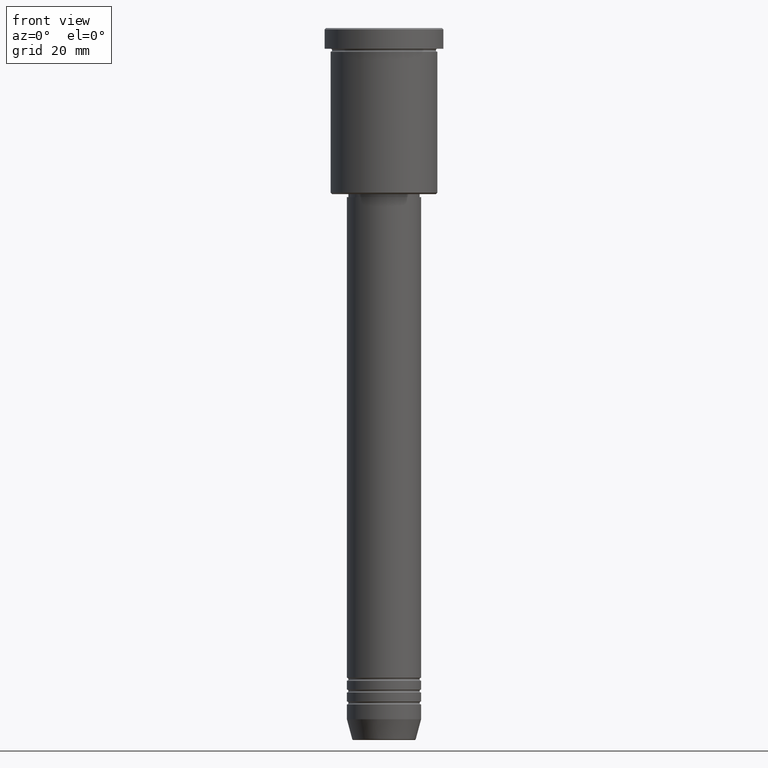
[diagram: clean part render]
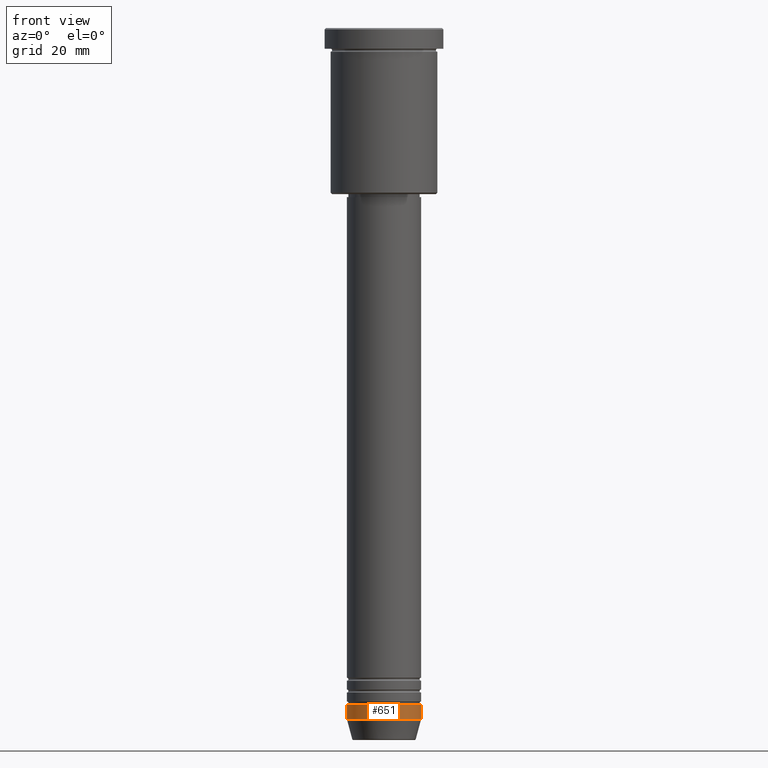
[diagram: same view with one face highlighted and labeled with its STEP entity id]
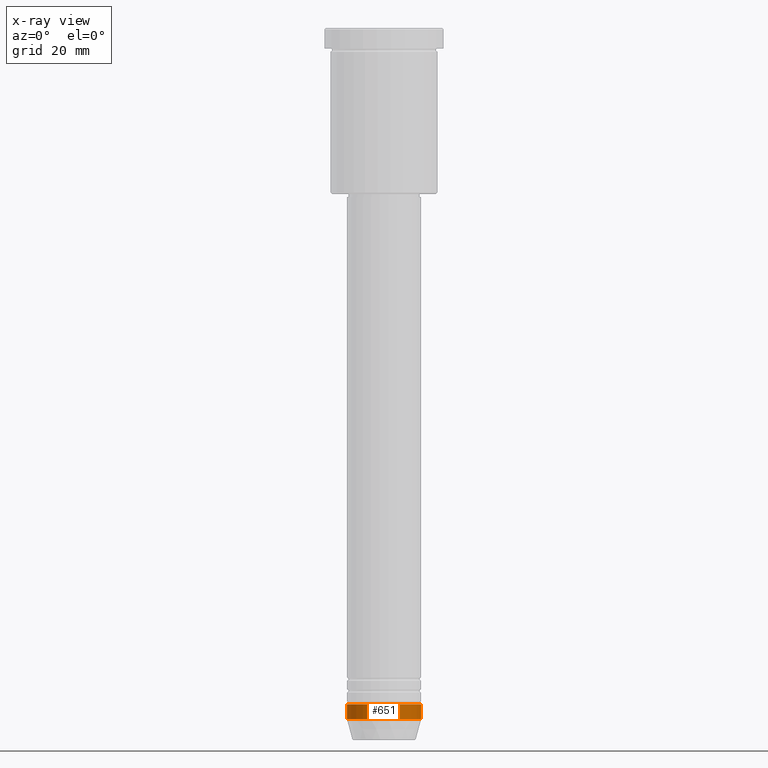
[diagram: x-ray of the same camera — body ghosted, the highlighted face saturated]
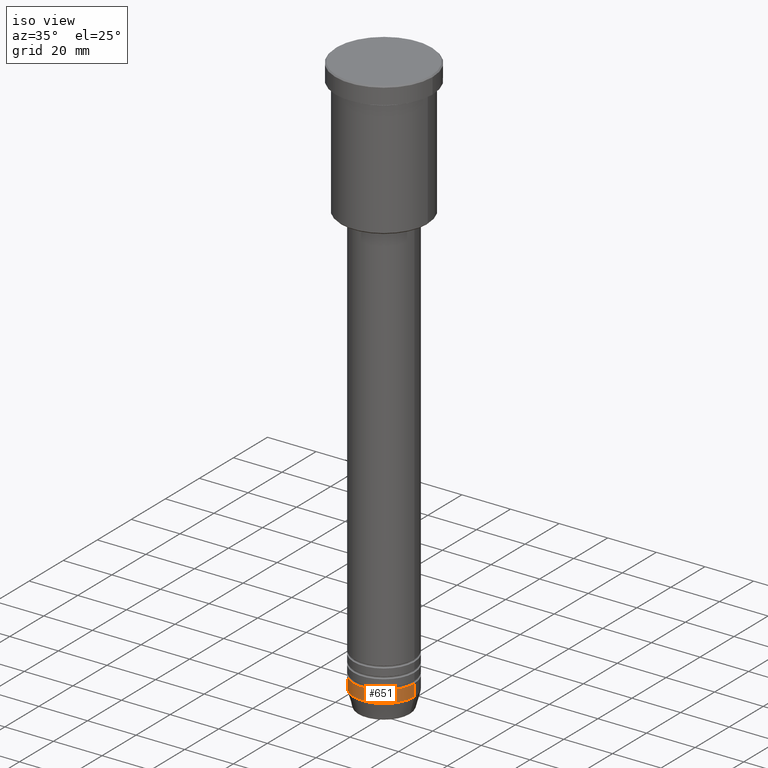
[diagram: same view with one face highlighted and labeled with its STEP entity id]
A machine part, front view. The second image highlights one B-rep face of the part: STEP entity #651.
The next image is the same camera in x-ray: the body ghosted, the highlighted face saturated — about 0% of this face is hidden behind the body in this view.
A second angle (iso view) of the same face is appended — the face is thin or edge-on in the first view.
In plain terms, the highlighted cylindrical surface (partial cylindrical patch) has radius 12.5 mm, axis along (-0, -0, 1).
Its self-contained STEP definition (entity closure, byte-faithful):
#11 = ORIENTED_EDGE ( 'NONE', *, *, #1038, .T. ) ;
#43 = CARTESIAN_POINT ( 'NONE',  ( -12.50000000000000000, 1.530808498934191521E-15, -228.0000000000000000 ) ) ;
#73 = ORIENTED_EDGE ( 'NONE', *, *, #980, .F. ) ;
#87 = VECTOR ( 'NONE', #1160, 1000.000000000000000 ) ;
#91 = EDGE_CURVE ( 'NONE', #462, #564, #1076, .T. ) ;
#183 = LINE ( 'NONE', #516, #939 ) ;
#200 = CARTESIAN_POINT ( 'NONE',  ( 0.000000000000000000, 0.000000000000000000, 0.000000000000000000 ) ) ;
#245 = VERTEX_POINT ( 'NONE', #267 ) ;
#267 = CARTESIAN_POINT ( 'NONE',  ( 12.50000000000000000, 0.000000000000000000, -233.0000000000000000 ) ) ;
#278 = VERTEX_POINT ( 'NONE', #473 ) ;
#385 = DIRECTION ( 'NONE',  ( -0.000000000000000000, -0.000000000000000000, 1.000000000000000000 ) ) ;
#446 = ORIENTED_EDGE ( 'NONE', *, *, #1106, .T. ) ;
#462 = VERTEX_POINT ( 'NONE', #43 ) ;
#473 = CARTESIAN_POINT ( 'NONE',  ( -12.50000000000000000, 1.530808498934191521E-15, -233.0000000000000000 ) ) ;
#494 = LINE ( 'NONE', #1081, #87 ) ;
#516 = CARTESIAN_POINT ( 'NONE',  ( 12.50000000000000000, 0.000000000000000000, 0.000000000000000000 ) ) ;
#548 = DIRECTION ( 'NONE',  ( -0.000000000000000000, -0.000000000000000000, 1.000000000000000000 ) ) ;
#564 = VERTEX_POINT ( 'NONE', #1083 ) ;
#651 = ADVANCED_FACE ( 'NONE', ( #1100 ), #745, .T. ) ;
#680 = AXIS2_PLACEMENT_3D ( 'NONE', #817, #385, #937 ) ;
#745 = CYLINDRICAL_SURFACE ( 'NONE', #1110, 12.50000000000000000 ) ;
#787 = CIRCLE ( 'NONE', #680, 12.50000000000000000 ) ;
#817 = CARTESIAN_POINT ( 'NONE',  ( 0.000000000000000000, 0.000000000000000000, -233.0000000000000000 ) ) ;
#851 = DIRECTION ( 'NONE',  ( 1.000000000000000000, 0.000000000000000000, 0.000000000000000000 ) ) ;
#869 = DIRECTION ( 'NONE',  ( -0.000000000000000000, -0.000000000000000000, 1.000000000000000000 ) ) ;
#899 = EDGE_LOOP ( 'NONE', ( #73, #446, #11, #1102 ) ) ;
#937 = DIRECTION ( 'NONE',  ( 1.000000000000000000, 0.000000000000000000, 0.000000000000000000 ) ) ;
#939 = VECTOR ( 'NONE', #1174, 1000.000000000000000 ) ;
#967 = CARTESIAN_POINT ( 'NONE',  ( 0.000000000000000000, 0.000000000000000000, -228.0000000000000000 ) ) ;
#980 = EDGE_CURVE ( 'NONE', #278, #462, #494, .T. ) ;
#992 = AXIS2_PLACEMENT_3D ( 'NONE', #967, #869, #851 ) ;
#1038 = EDGE_CURVE ( 'NONE', #245, #564, #183, .T. ) ;
#1076 = CIRCLE ( 'NONE', #992, 12.50000000000000000 ) ;
#1081 = CARTESIAN_POINT ( 'NONE',  ( -12.50000000000000000, 1.530808498934191521E-15, 0.000000000000000000 ) ) ;
#1083 = CARTESIAN_POINT ( 'NONE',  ( 12.50000000000000000, 0.000000000000000000, -228.0000000000000000 ) ) ;
#1100 = FACE_OUTER_BOUND ( 'NONE', #899, .T. ) ;
#1102 = ORIENTED_EDGE ( 'NONE', *, *, #91, .F. ) ;
#1106 = EDGE_CURVE ( 'NONE', #278, #245, #787, .T. ) ;
#1110 = AXIS2_PLACEMENT_3D ( 'NONE', #200, #548, #1116 ) ;
#1116 = DIRECTION ( 'NONE',  ( 1.000000000000000000, 0.000000000000000000, 0.000000000000000000 ) ) ;
#1160 = DIRECTION ( 'NONE',  ( -0.000000000000000000, -0.000000000000000000, 1.000000000000000000 ) ) ;
#1174 = DIRECTION ( 'NONE',  ( -0.000000000000000000, -0.000000000000000000, 1.000000000000000000 ) ) ;